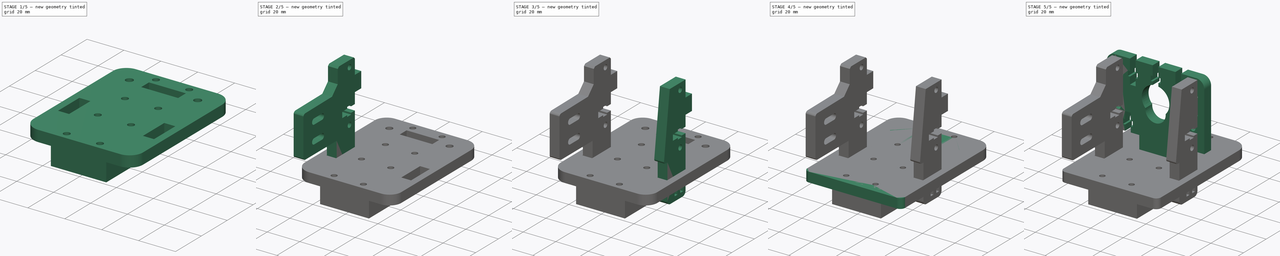
[diagram: build sequence overview — one tinted view per stage of 5, left to right]
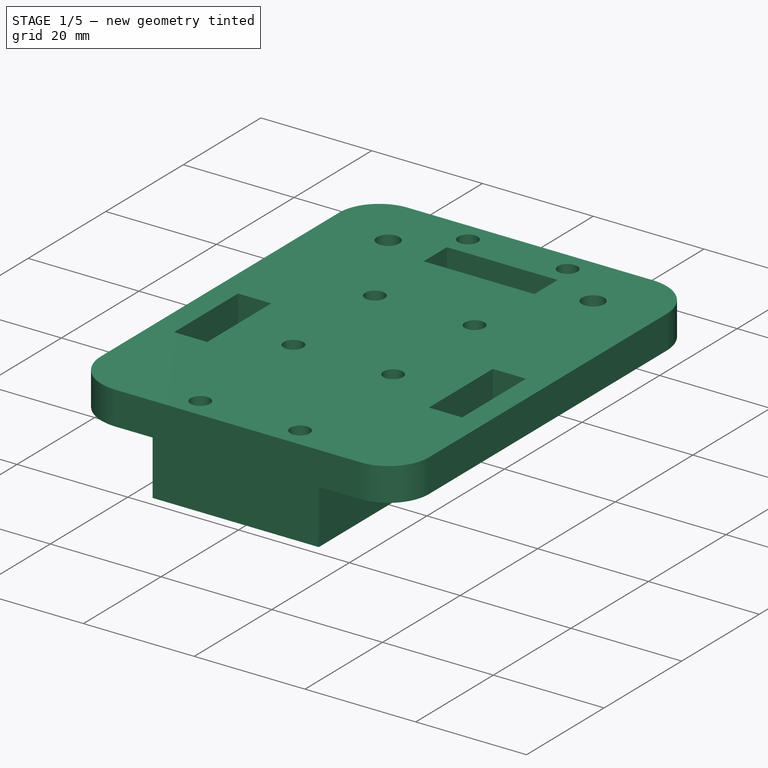
[diagram: stage 1 of 5 — iso view after this stage's code; geometry added in this stage tinted green]
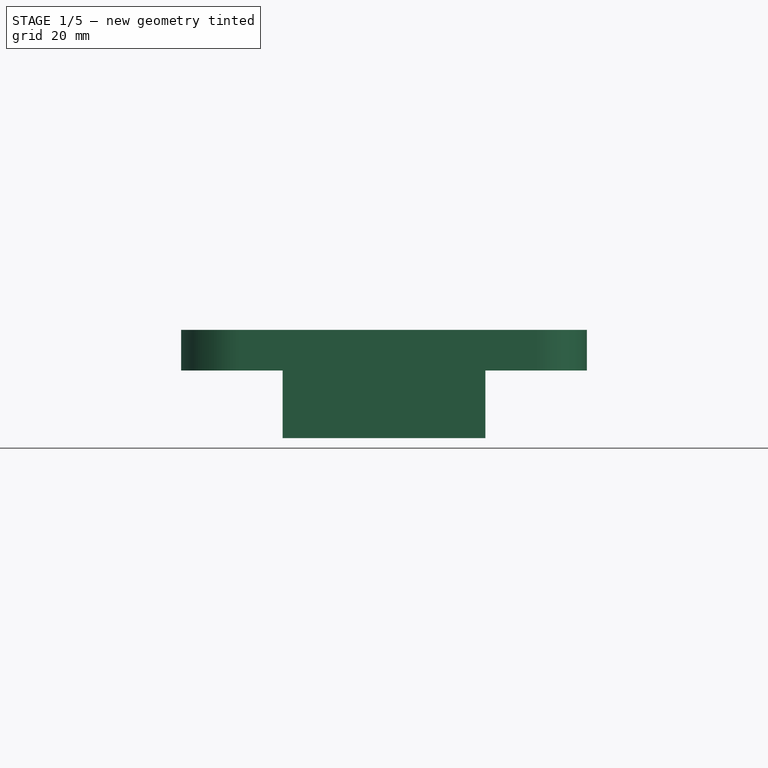
[diagram: stage 1 of 5 — front view after this stage's code; geometry added in this stage tinted green]
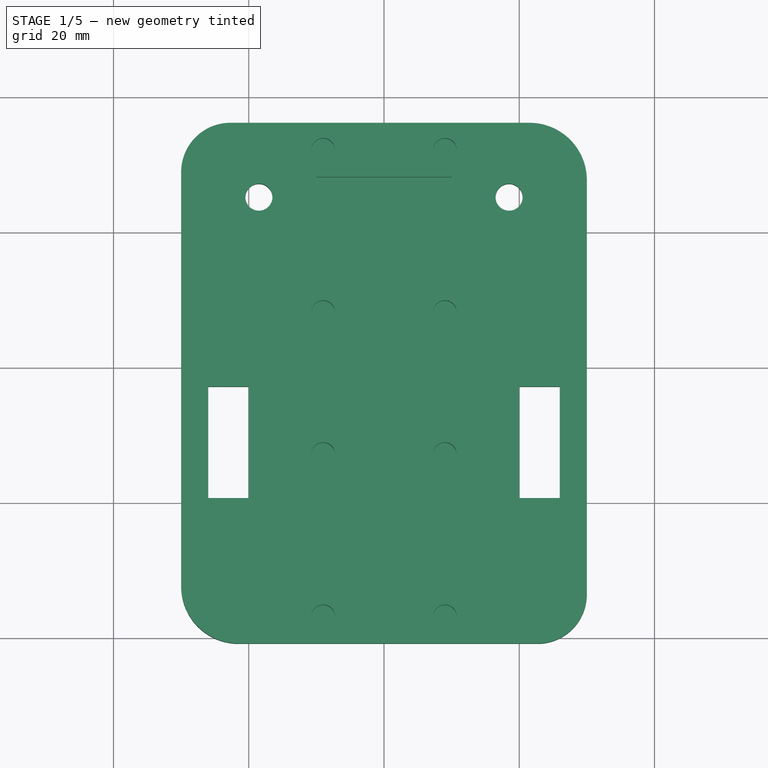
[diagram: stage 1 of 5 — top view after this stage's code; geometry added in this stage tinted green]
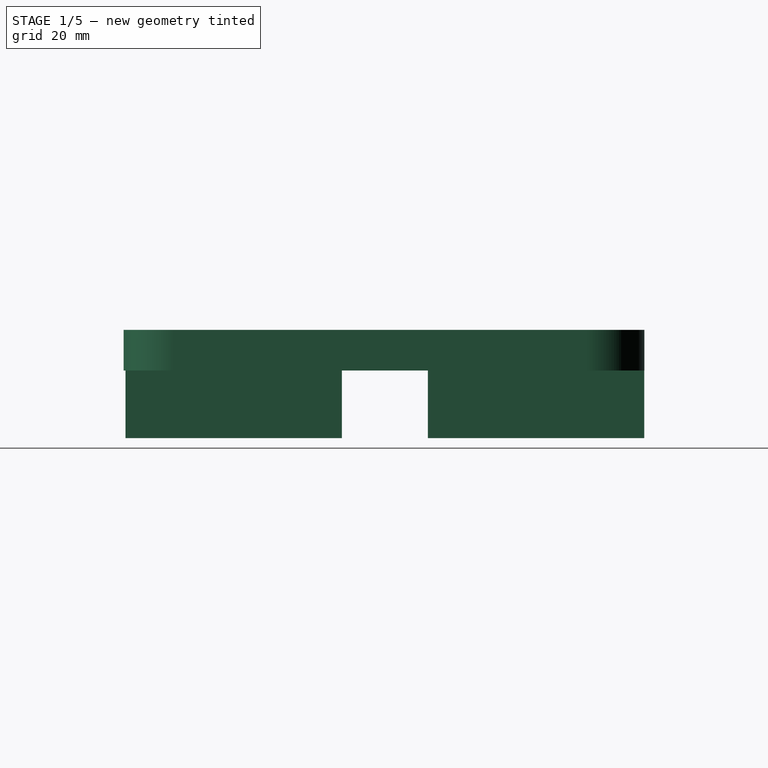
[diagram: stage 1 of 5 — right view after this stage's code; geometry added in this stage tinted green]
FCSTD DOCUMENT  (FreeCAD 0.17R12495 (Git))
Label: head
License: All rights reserved
LicenseURL: http://en.wikipedia.org/wiki/All_rights_reserved
objects: Part::Feature×11, Part::Extrusion×8, Part::Cut×4, PartDesign::Body×4, Sketcher::SketchObject×3, PartDesign::Pad×3, Part::MultiFuse×1
note: 37 computed .brp shape members not serialized (recipe doc carries the construction recipe); baked Part::Feature solids carry a one-line shape summary decoded from their .brp

FEATURE [Sketcher::SketchObject] Sketch
  MapMode = 5
  Placement = pos=(0,0,-6) rot=(0,1,0;3.14159rad)
  Support = -> [XY_Plane]
  superPlacement = pos=(0,0,6) rot=(0,0,1;0rad)
  sketch-geometry (6):
    g0: LineSegment StartX=15 StartY=-4.01102 StartZ=0 EndX=-15 EndY=-4.01102 EndZ=0
    g1: LineSegment StartX=-15 StartY=-4.01102 StartZ=0 EndX=-15 EndY=-36.011 EndZ=0
    g2: LineSegment StartX=-15 StartY=-36.011 StartZ=0 EndX=15 EndY=-36.011 EndZ=0
    g3: LineSegment StartX=15 StartY=-36.011 StartZ=0 EndX=15 EndY=-4.01102 EndZ=0
    g4: LineSegment [constr] StartX=-15 StartY=-36.011 StartZ=0 EndX=15 EndY=-4.01102 EndZ=0
    g5: LineSegment [constr] StartX=-15 StartY=-4.01102 StartZ=0 EndX=15 EndY=-36.011 EndZ=0
  constraints (15):
    c: Coincident(g0,g1)
    c: Coincident(g1,g2)
    c: Coincident(g2,g3)
    c: Coincident(g3,g0)
    c: Horizontal(g0)
    c: Horizontal(g2)
    c: Vertical(g1)
    c: Vertical(g3)
    c: Coincident(g4,g1)
    c: Coincident(g4,g0)
    c: Coincident(g5,g0)
    c: Coincident(g5,g2)
    c: Symmetric(g0,g0,g-2)
    c: DistanceY(g3,g3) = 32
    c: DistanceX(g0,g0) = 30
FEATURE [Sketcher::SketchObject] Sketch001
  Placement = pos=(0,0,-6) rot=(0,1,0;3.14159rad)
  Support = -> [XY_Plane001]
  superPlacement = pos=(0,0,6) rot=(0,0,1;0rad)
  sketch-geometry (6):
    g0: LineSegment StartX=-15 StartY=-48.7335 StartZ=0 EndX=15 EndY=-48.7335 EndZ=0
    g1: LineSegment StartX=15 StartY=-48.7335 StartZ=0 EndX=15 EndY=-80.7335 EndZ=0
    g2: LineSegment StartX=15 StartY=-80.7335 StartZ=0 EndX=-15 EndY=-80.7335 EndZ=0
    g3: LineSegment StartX=-15 StartY=-80.7335 StartZ=0 EndX=-15 EndY=-48.7335 EndZ=0
    g4: LineSegment [constr] StartX=-15 StartY=-80.7335 StartZ=0 EndX=15 EndY=-48.7335 EndZ=0
    g5: LineSegment [constr] StartX=-15 StartY=-48.7335 StartZ=0 EndX=15 EndY=-80.7335 EndZ=0
  constraints (15):
    c: Coincident(g0,g1)
    c: Coincident(g1,g2)
    c: Coincident(g2,g3)
    c: Coincident(g3,g0)
    c: Horizontal(g0)
    c: Horizontal(g2)
    c: Vertical(g1)
    c: Vertical(g3)
    c: DistanceY(g1,g1) = 32
    c: DistanceX(g2,g2) = 30
    c: Symmetric(g2,g1,g-2)
    c: Coincident(g4,g2)
    c: Coincident(g4,g0)
    c: Coincident(g5,g0)
    c: Coincident(g5,g1)
FEATURE [PartDesign::Pad] Pad
  Length = 10
  Length2 = 100
  Profile = -> Sketch
  Type = 0
FEATURE [PartDesign::Body] Body  label="bearingT"
  Group = -> [Sketch,Pad]
  Origin = -> Origin
  Tip = -> Pad
FEATURE [PartDesign::Pad] Pad001
  Length = 10
  Length2 = 100
  Profile = -> Sketch001
  Type = 0
FEATURE [PartDesign::Body] Body001  label="bearingB"
  Group = -> [Sketch001,Pad001]
  Origin = -> Origin001
  Tip = -> Pad001
FEATURE [PartDesign::Body] Body003
  Origin = -> Origin003
FEATURE [Sketcher::SketchObject] Sketch002
  MapMode = 5
  Placement = pos=(0,0,-6) rot=(0,1,0;3.14159rad)
  Support = -> [XY_Plane002]
  superPlacement = pos=(0,0,6) rot=(0,0,1;0rad)
  sketch-geometry (31):
    g0: LineSegment StartX=-21.5147 StartY=-4 StartZ=0 EndX=22.7147 EndY=-4 EndZ=0
    g1: LineSegment StartX=30 StartY=-11.2853 StartZ=0 EndX=30 EndY=-72.5147 EndZ=0
    g2: LineSegment StartX=21.5147 StartY=-81 StartZ=0 EndX=-22.7147 EndY=-81 EndZ=0
    g3: LineSegment StartX=-30 StartY=-73.7147 StartZ=0 EndX=-30 EndY=-12.4853 EndZ=0
    g4: ArcOfCircle CenterX=21.5147 CenterY=-72.5147 CenterZ=0 NormalX=0 NormalY=0 NormalZ=1 AngleXU=0 Radius=8.48528 StartAngle=4.71239 EndAngle=6.28319
    g5: ArcOfCircle CenterX=-22.7147 CenterY=-73.7147 CenterZ=0 NormalX=0 NormalY=0 NormalZ=1 AngleXU=0 Radius=7.28528 StartAngle=3.14159 EndAngle=4.71239
    g6: ArcOfCircle CenterX=-21.5147 CenterY=-12.4853 CenterZ=0 NormalX=0 NormalY=0 NormalZ=1 AngleXU=0 Radius=8.48528 StartAngle=1.5708 EndAngle=3.14159
    g7: ArcOfCircle CenterX=22.7147 CenterY=-11.2853 CenterZ=0 NormalX=0 NormalY=0 NormalZ=1 AngleXU=0 Radius=7.28528 StartAngle=0 EndAngle=1.5708
    g8: Circle CenterX=-9 CenterY=-8 CenterZ=0 NormalX=0 NormalY=0 NormalZ=1 AngleXU=0 Radius=1.75
    g9: Circle CenterX=9 CenterY=-8 CenterZ=0 NormalX=0 NormalY=0 NormalZ=1 AngleXU=0 Radius=1.75
    g10: Circle CenterX=9 CenterY=-32 CenterZ=0 NormalX=0 NormalY=0 NormalZ=1 AngleXU=0 Radius=1.75
    g11: Circle CenterX=-9 CenterY=-32 CenterZ=0 NormalX=0 NormalY=0 NormalZ=1 AngleXU=0 Radius=1.75
    g12: Circle CenterX=-9 CenterY=-53 CenterZ=0 NormalX=0 NormalY=0 NormalZ=1 AngleXU=0 Radius=1.75
    g13: Circle CenterX=9 CenterY=-53 CenterZ=0 NormalX=0 NormalY=0 NormalZ=1 AngleXU=0 Radius=1.75
    g14: Circle CenterX=9 CenterY=-77 CenterZ=0 NormalX=0 NormalY=0 NormalZ=1 AngleXU=0 Radius=1.75
    g15: Circle CenterX=-9 CenterY=-77 CenterZ=0 NormalX=0 NormalY=0 NormalZ=1 AngleXU=0 Radius=1.75
    g16: LineSegment StartX=-26 StartY=-43 StartZ=0 EndX=-20 EndY=-43 EndZ=0
    g17: LineSegment StartX=-20 StartY=-43 StartZ=0 EndX=-20 EndY=-59.5 EndZ=0
    g18: LineSegment StartX=-20 StartY=-59.5 StartZ=0 EndX=-26 EndY=-59.5 EndZ=0
    g19: LineSegment StartX=-26 StartY=-59.5 StartZ=0 EndX=-26 EndY=-43 EndZ=0
    g20: LineSegment StartX=20 StartY=-43 StartZ=0 EndX=26 EndY=-43 EndZ=0
    g21: LineSegment StartX=26 StartY=-43 StartZ=0 EndX=26 EndY=-59.5 EndZ=0
    g22: LineSegment StartX=26 StartY=-59.5 StartZ=0 EndX=20 EndY=-59.5 EndZ=0
    g23: LineSegment StartX=20 StartY=-59.5 StartZ=0 EndX=20 EndY=-43 EndZ=0
    g24: LineSegment StartX=-10 StartY=-12 StartZ=0 EndX=10 EndY=-12 EndZ=0
    g25: LineSegment StartX=10 StartY=-12 StartZ=0 EndX=10 EndY=-18 EndZ=0
    g26: LineSegment StartX=10 StartY=-18 StartZ=0 EndX=-10 EndY=-18 EndZ=0
    g27: LineSegment StartX=-10 StartY=-18 StartZ=0 EndX=-10 EndY=-12 EndZ=0
    g28: Circle CenterX=-18.4993 CenterY=-15 CenterZ=0 NormalX=0 NormalY=0 NormalZ=1 AngleXU=0 Radius=2
    g29: Circle CenterX=18.4993 CenterY=-15 CenterZ=0 NormalX=0 NormalY=0 NormalZ=1 AngleXU=0 Radius=2
    g30: LineSegment [constr] StartX=-18.4993 StartY=-15 StartZ=0 EndX=18.4993 EndY=-15 EndZ=0
  constraints (52):
    c: Horizontal(g0)
    c: Horizontal(g2)
    c: Vertical(g1)
    c: Vertical(g3)
    c: Tangent(g1,g4) = 1.5708
    c: Tangent(g2,g4) = 1.5708
    c: Tangent(g2,g5) = 1.5708
    c: Tangent(g3,g5) = 1.5708
    c: Tangent(g0,g6) = 1.5708
    c: Tangent(g3,g6) = 1.5708
    c: Tangent(g0,g7) = 1.5708
    c: Tangent(g1,g7) = 1.5708
    c: Radius(g8) = 1.75
    c: Equal(g8,g9) = 1.75
    c: Equal(g8,g11) = 1.75
    c: Equal(g11,g10) = 1.75
    c: Equal(g8,g12) = 1.75
    c: Equal(g12,g13) = 1.75
    c: Equal(g12,g15) = 1.75
    c: Equal(g15,g14) = 1.75
    c: Coincident(g16,g17)
    c: Coincident(g17,g18)
    c: Coincident(g18,g19)
    c: Coincident(g19,g16)
    c: Horizontal(g16)
    c: Horizontal(g18)
    c: Vertical(g17)
    c: Vertical(g19)
    c: Coincident(g20,g21)
    c: Coincident(g21,g22)
    c: Coincident(g22,g23)
    c: Coincident(g23,g20)
    c: Horizontal(g20)
    c: Horizontal(g22)
    c: Vertical(g21)
    c: Vertical(g23)
    c: Coincident(g24,g25)
    c: Coincident(g25,g26)
    c: Coincident(g26,g27)
    c: Coincident(g27,g24)
    c: Horizontal(g24)
    c: Horizontal(g26)
    c: Vertical(g25)
    c: Vertical(g27)
    c: Equal(g29,g28)
    c: Radius(g29) = 2
    c: Symmetric(g29,g28,g-2)
    c: Coincident(g30,g28)
    c: Coincident(g30,g29)
    c: Symmetric(g24,g26,g30)
    c: DistanceY(g26) = -18
    c: DistanceY(g25,g25) = 6
FEATURE [PartDesign::Pad] Pad002
  Length = 6
  Length2 = 100
  Profile = -> Sketch002
  Reversed = true
  Type = 0
FEATURE [PartDesign::Body] Body002  label="Back"
  Group = -> [Sketch002,Pad002]
  Origin = -> Origin002
  Tip = -> Pad002
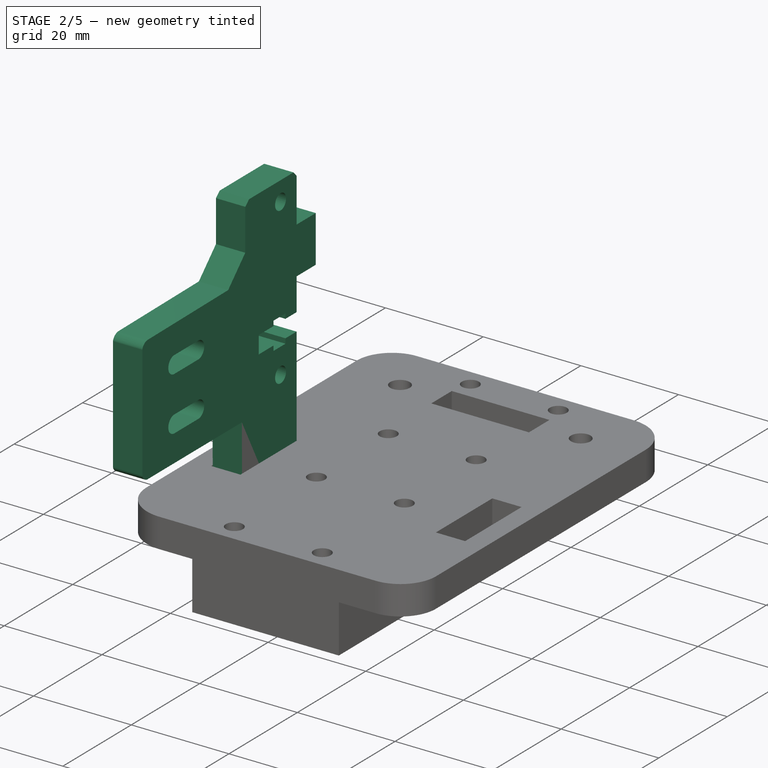
[diagram: stage 2 of 5 — iso view after this stage's code; geometry added in this stage tinted green]
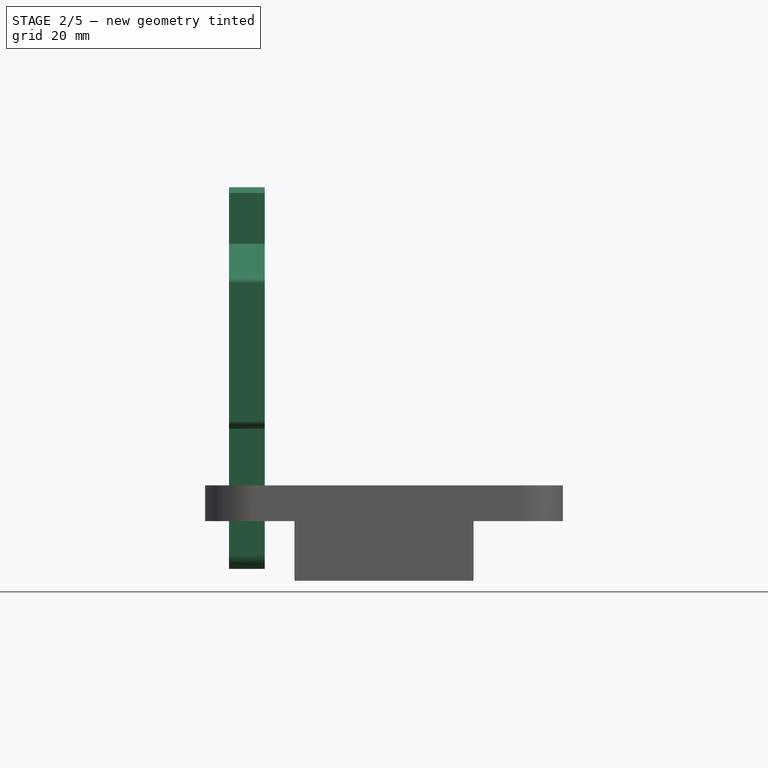
[diagram: stage 2 of 5 — front view after this stage's code; geometry added in this stage tinted green]
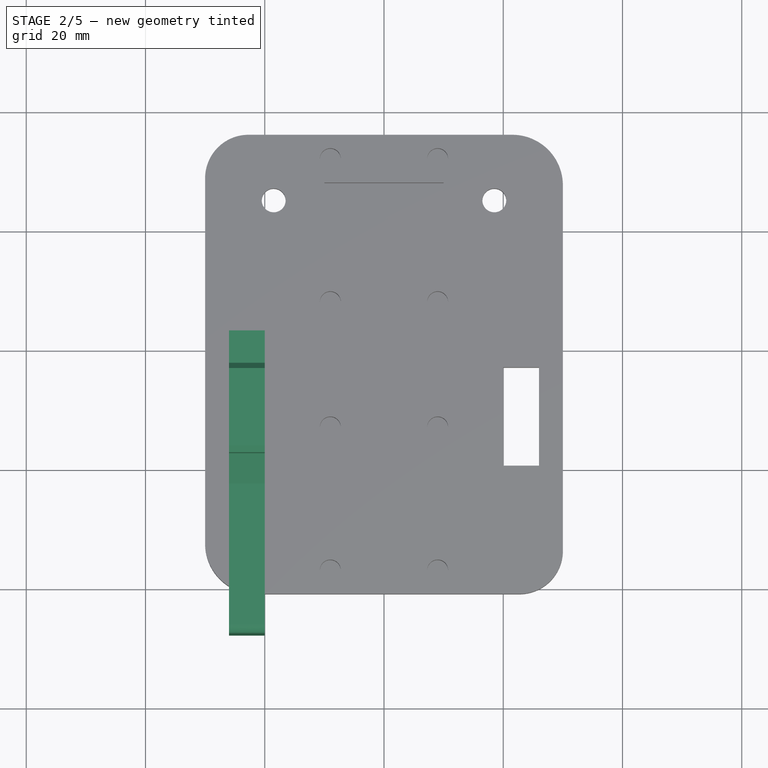
[diagram: stage 2 of 5 — top view after this stage's code; geometry added in this stage tinted green]
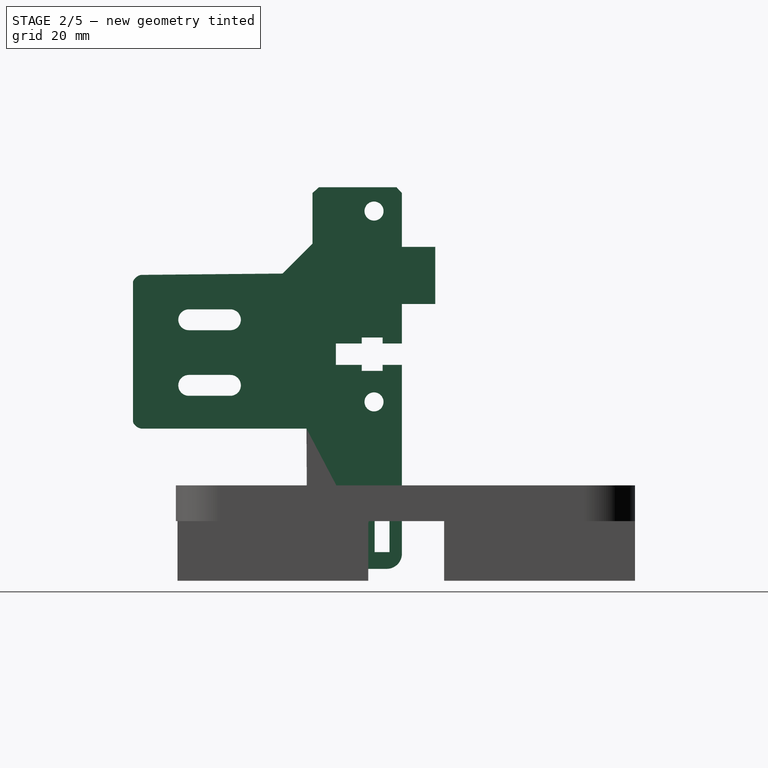
[diagram: stage 2 of 5 — right view after this stage's code; geometry added in this stage tinted green]
FEATURE [Part::Feature] Shell002
  shape: bbox 58.8 x 35.43 x 2e-07 mm, 6 faces, 0 solids (baked)
FEATURE [Part::Feature] Face006
  shape: bbox 64 x 50.7 x 2e-07 mm, 1 faces, 0 solids (baked)
FEATURE [Part::Extrusion] Extrude006
  Base = -> Shell002
  Dir = (0,0,-1)
  DirMode = 0
  FaceMakerClass = Part::FaceMakerBullseye
  LengthFwd = 10
  LengthRev = 0
  Placement = pos=(0,0,2) rot=(0,0,1;0rad)
  Solid = false
  Symmetric = false
FEATURE [Part::Extrusion] Extrude007
  Base = -> Face006
  Dir = (0,0,-1)
  DirMode = 0
  FaceMakerClass = Part::FaceMakerBullseye
  LengthFwd = 6
  LengthRev = 0
  Solid = false
  Symmetric = false
FEATURE [Part::Cut] Cut003  label="right"
  Base = -> Extrude007
  Placement = pos=(-20,-35.5,52) rot=(0,1,0;1.5708rad)
  Tool = -> Extrude006
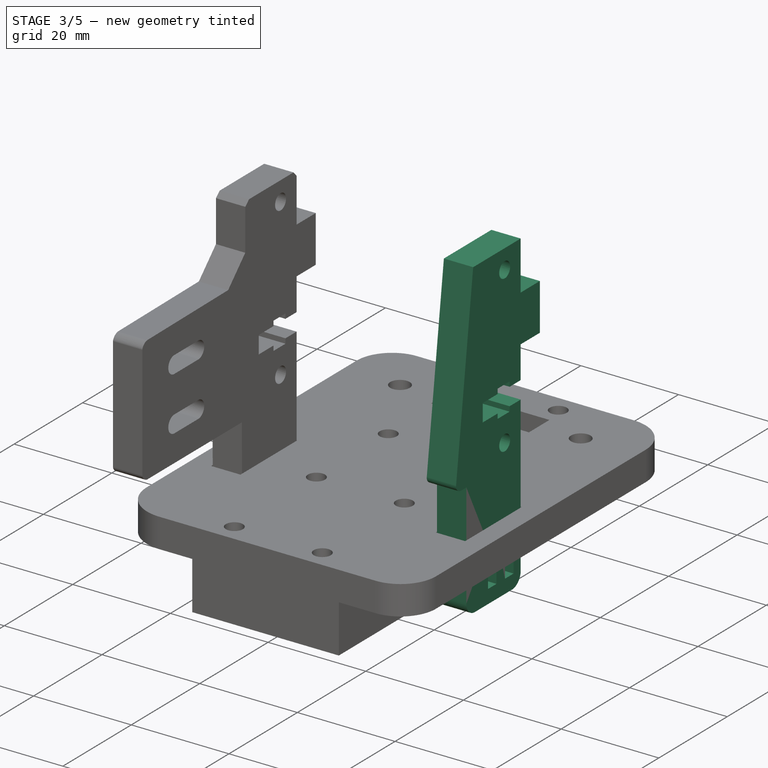
[diagram: stage 3 of 5 — iso view after this stage's code; geometry added in this stage tinted green]
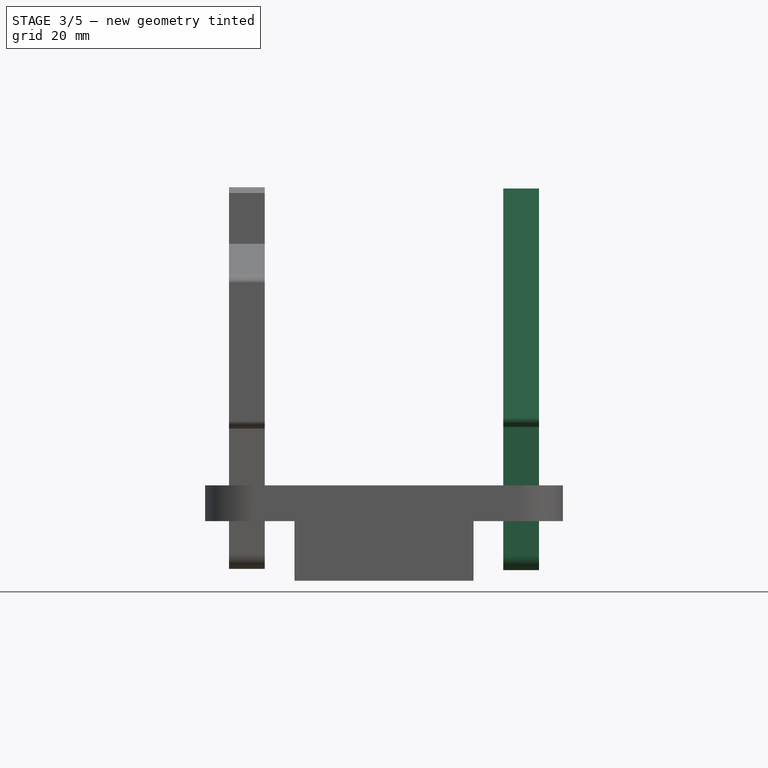
[diagram: stage 3 of 5 — front view after this stage's code; geometry added in this stage tinted green]
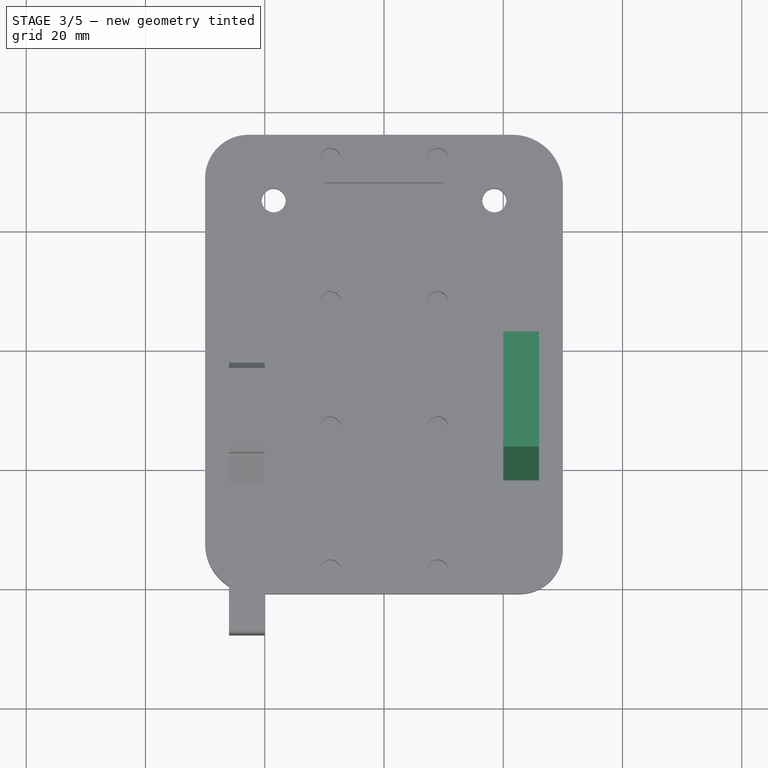
[diagram: stage 3 of 5 — top view after this stage's code; geometry added in this stage tinted green]
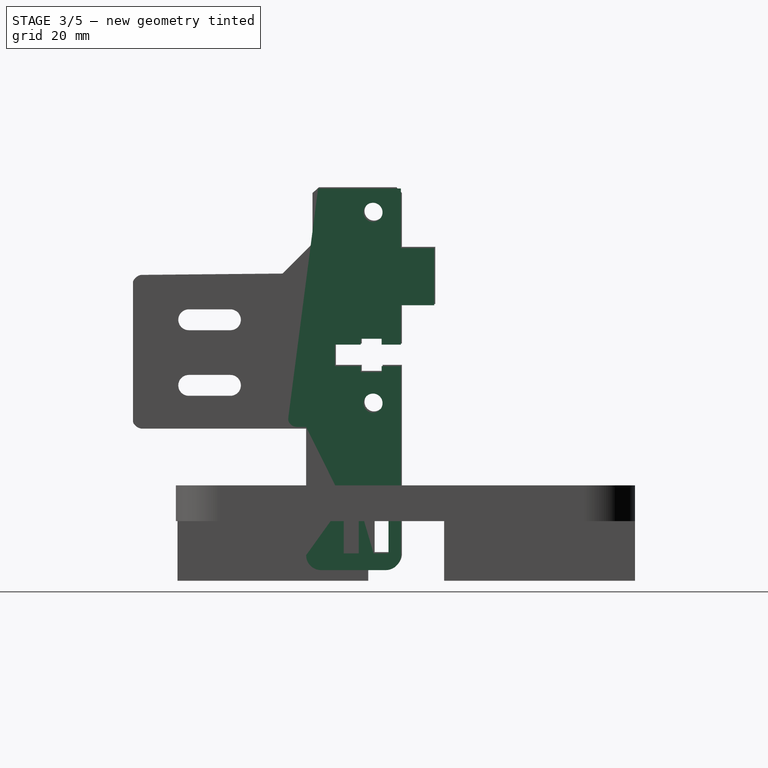
[diagram: stage 3 of 5 — right view after this stage's code; geometry added in this stage tinted green]
FEATURE [Part::Feature] Shell001
  shape: bbox 58.8 x 7.5 x 2e-07 mm, 4 faces, 0 solids (baked)
FEATURE [Part::Extrusion] Extrude004
  Base = -> Shell001
  Dir = (0,0,-1)
  DirMode = 0
  FaceMakerClass = Part::FaceMakerBullseye
  LengthFwd = 10
  LengthRev = 0
  Placement = pos=(0,0,2) rot=(0,0,1;0rad)
  Solid = true
  Symmetric = false
FEATURE [Part::Feature] Face005
  shape: bbox 64 x 24.5 x 2e-07 mm, 1 faces, 0 solids (baked)
FEATURE [Part::Extrusion] Extrude005
  Base = -> Face005
  Dir = (0,0,-1)
  DirMode = 0
  FaceMakerClass = Part::FaceMakerBullseye
  LengthFwd = 6
  LengthRev = 0
  Solid = false
  Symmetric = false
FEATURE [Part::Cut] Cut002  label="left"
  Base = -> Extrude005
  Placement = pos=(20,-64,52.5) rot=(0.707107,0,-0.707107;3.14159rad)
  Tool = -> Extrude004
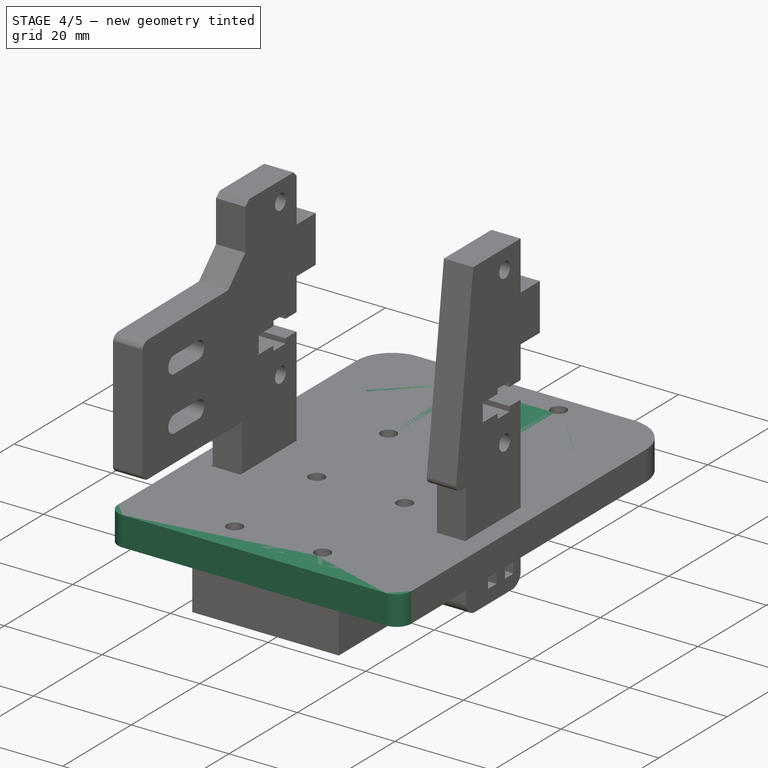
[diagram: stage 4 of 5 — iso view after this stage's code; geometry added in this stage tinted green]
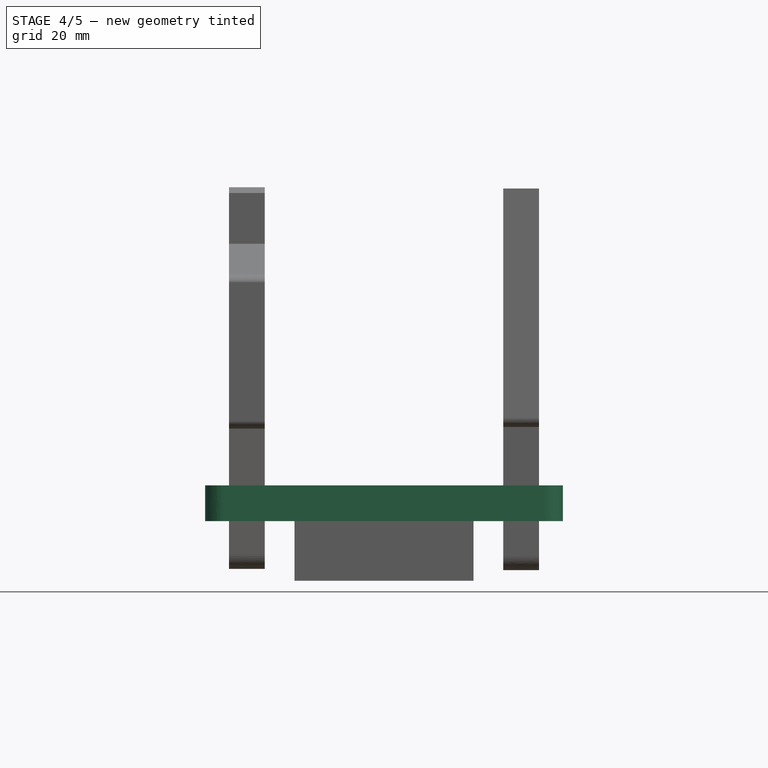
[diagram: stage 4 of 5 — front view after this stage's code; geometry added in this stage tinted green]
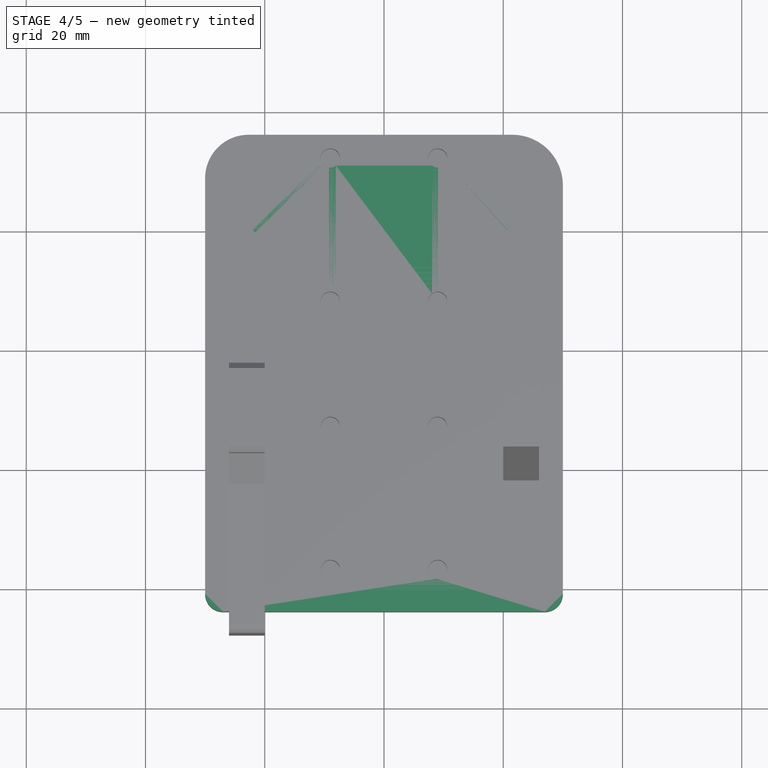
[diagram: stage 4 of 5 — top view after this stage's code; geometry added in this stage tinted green]
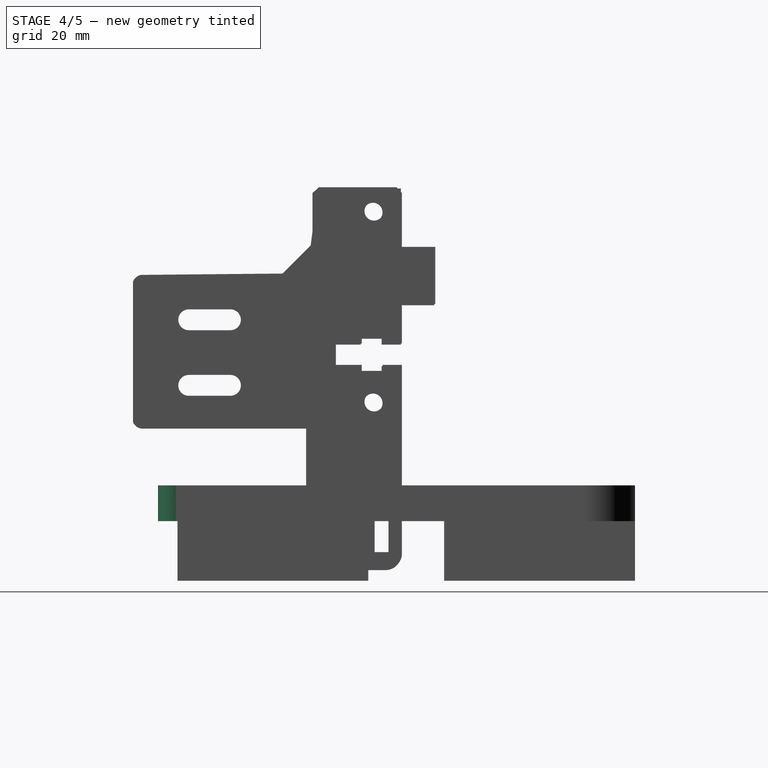
[diagram: stage 4 of 5 — right view after this stage's code; geometry added in this stage tinted green]
FEATURE [Part::Feature] rect5079
  shape: bbox 60 x 80 x 2e-07 mm, 1 faces, 0 solids (baked)
FEATURE [Part::Feature] Shell
  shape: bbox 52 x 72.2 x 2e-07 mm, 17 faces, 0 solids (baked)
FEATURE [Part::Extrusion] Extrude002
  Base = -> Shell
  Dir = (0,0,-1)
  DirMode = 0
  FaceMakerClass = Part::FaceMakerBullseye
  LengthFwd = 10
  LengthRev = 0
  Placement = pos=(0,0,2) rot=(0,0,1;0rad)
  Solid = true
  Symmetric = false
FEATURE [Part::Extrusion] Extrude003
  Base = -> rect5079
  Dir = (0,0,-1)
  DirMode = 0
  FaceMakerClass = Part::FaceMakerBullseye
  LengthFwd = 6
  LengthRev = 0
  Solid = false
  Symmetric = false
FEATURE [Part::Cut] Cut001  label="back orig"
  Base = -> Extrude003
  Placement = pos=(-33,0,0) rot=(0,0,1;0rad)
  Tool = -> Extrude002
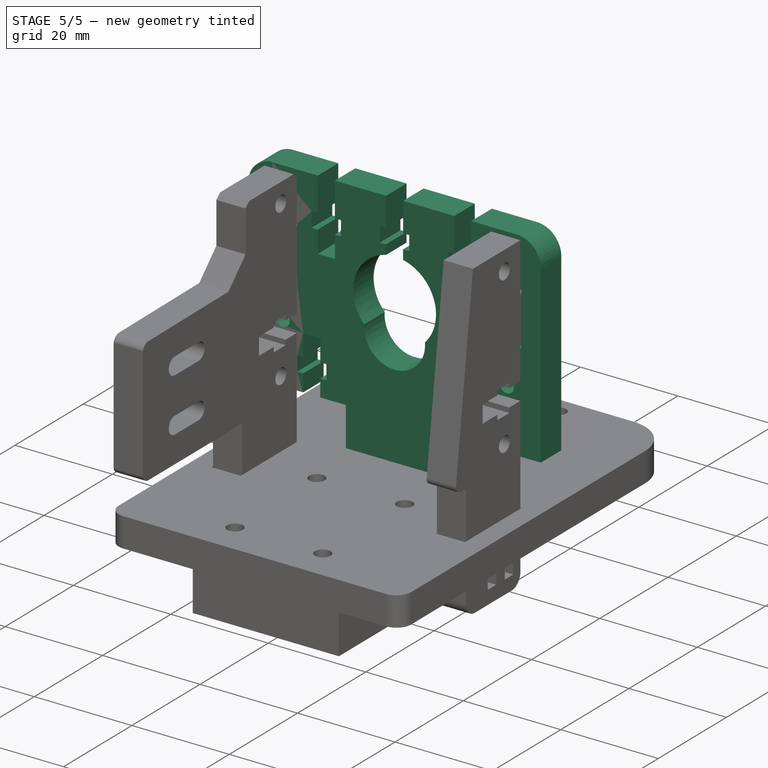
[diagram: stage 5 of 5 — iso view after this stage's code; geometry added in this stage tinted green]
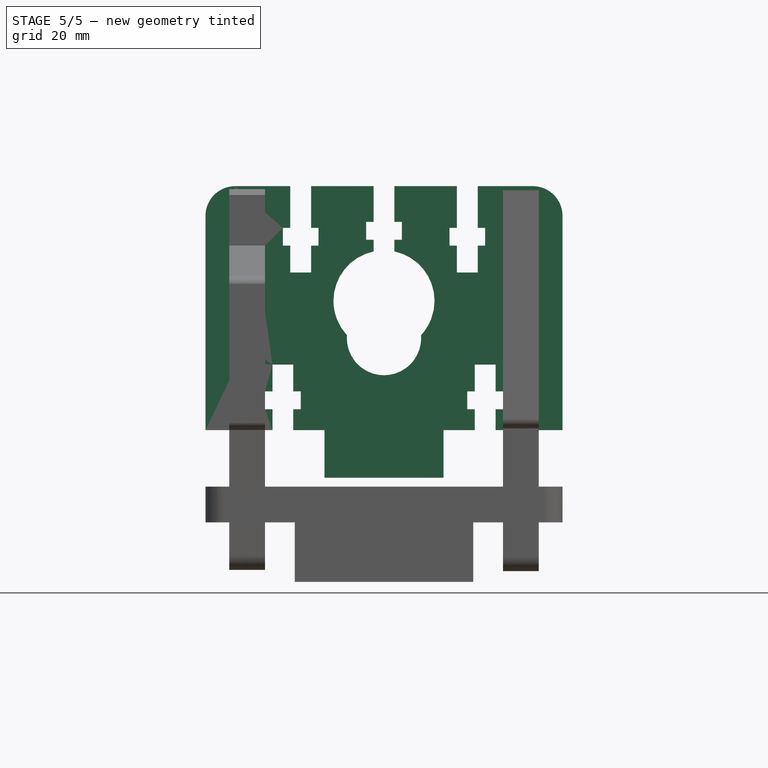
[diagram: stage 5 of 5 — front view after this stage's code; geometry added in this stage tinted green]
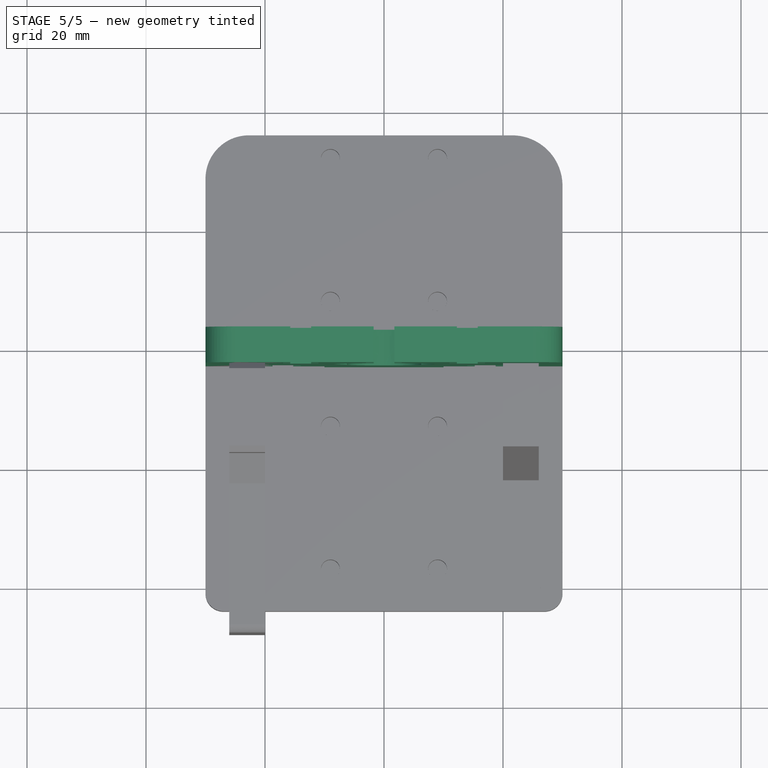
[diagram: stage 5 of 5 — top view after this stage's code; geometry added in this stage tinted green]
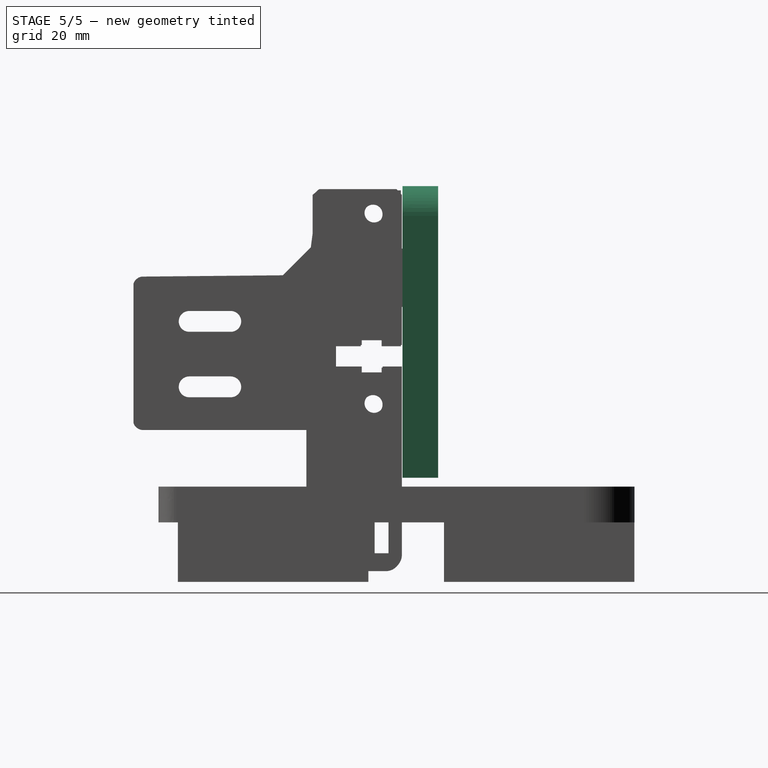
[diagram: stage 5 of 5 — right view after this stage's code; geometry added in this stage tinted green]
FEATURE [Part::Feature] Face
  shape: bbox 60 x 49 x 2e-07 mm, 1 faces, 0 solids (baked)
FEATURE [Part::Feature] Face001
  shape: bbox 6 x 11 x 2e-07 mm, 1 faces, 0 solids (baked)
FEATURE [Part::Feature] Face002
  shape: bbox 3 x 3 x 2e-07 mm, 1 faces, 0 solids (baked)
FEATURE [Part::Feature] Face003
  shape: bbox 6 x 11 x 2e-07 mm, 1 faces, 0 solids (baked)
FEATURE [Part::Feature] Face004
  shape: bbox 3 x 3 x 2e-07 mm, 1 faces, 0 solids (baked)
FEATURE [Part::Extrusion] Extrude001
  Base = -> Face
  Dir = (0,0,-1)
  DirMode = 0
  FaceMakerClass = Part::FaceMakerBullseye
  LengthFwd = 6
  LengthRev = 0
  Solid = true
  Symmetric = false
FEATURE [Part::MultiFuse] Fusion
  Shapes = -> [Face004,Face003,Face002,Face001]
FEATURE [Part::Extrusion] Extrude
  Base = -> Fusion
  Dir = (0,0,-1)
  DirMode = 0
  FaceMakerClass = Part::FaceMakerBullseye
  LengthFwd = 10
  LengthRev = 0
  Placement = pos=(0,0,3) rot=(0,0,1;0rad)
  Solid = false
  Symmetric = false
FEATURE [Part::Cut] Cut  label="top"
  Base = -> Extrude001
  Placement = pos=(-33,-43,53) rot=(1,0,0;1.5708rad)
  Tool = -> Extrude
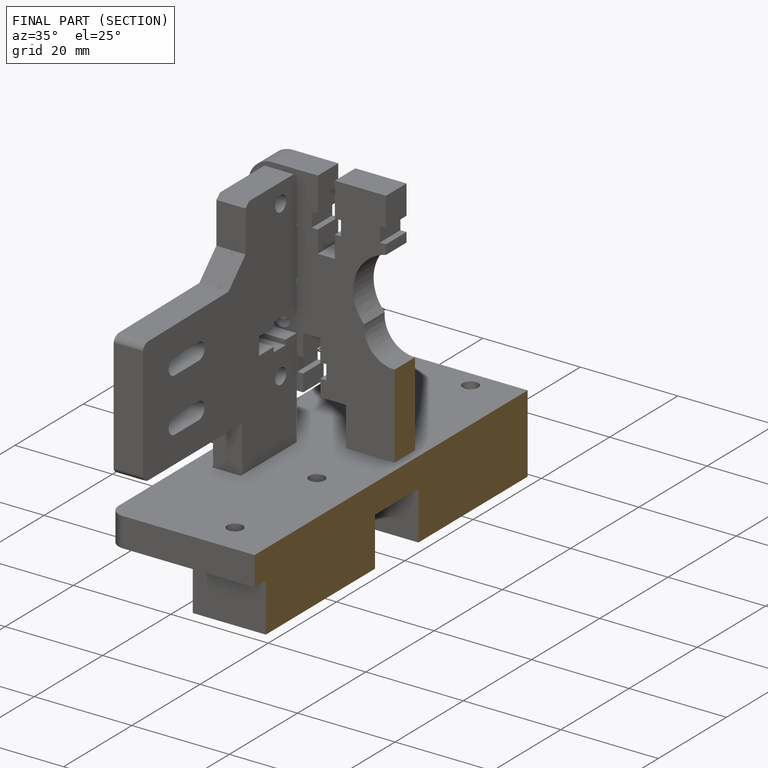
[diagram: finished part — half-section view (interior)]
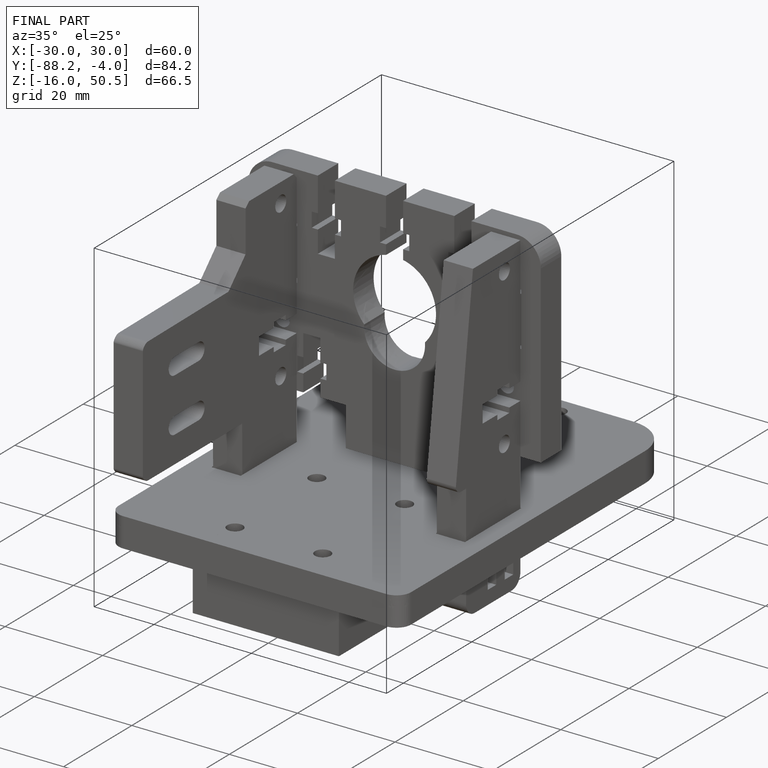
[diagram: finished part — iso view with bounding-box wireframe]
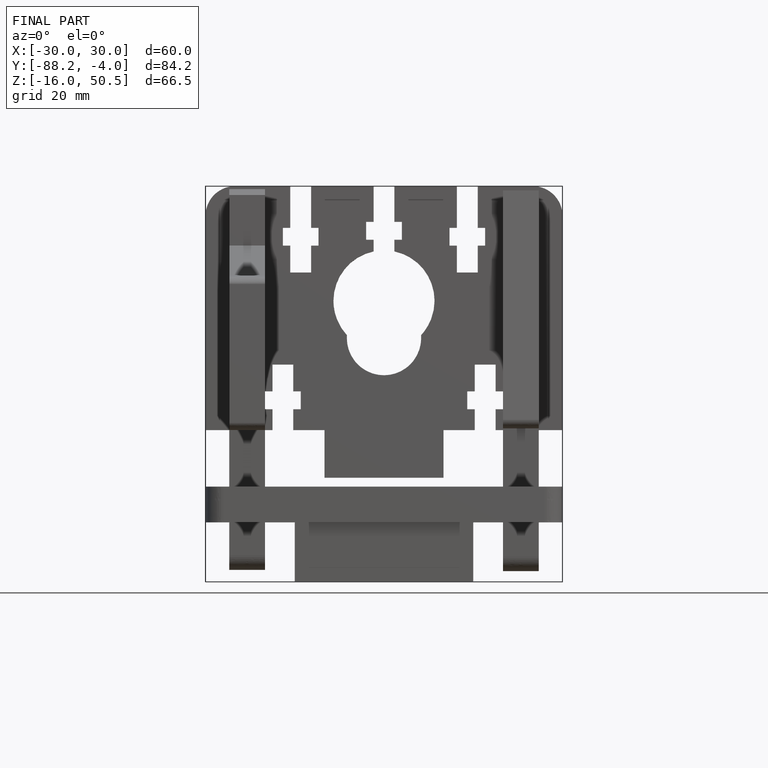
[diagram: finished part — front view with bounding-box wireframe]
